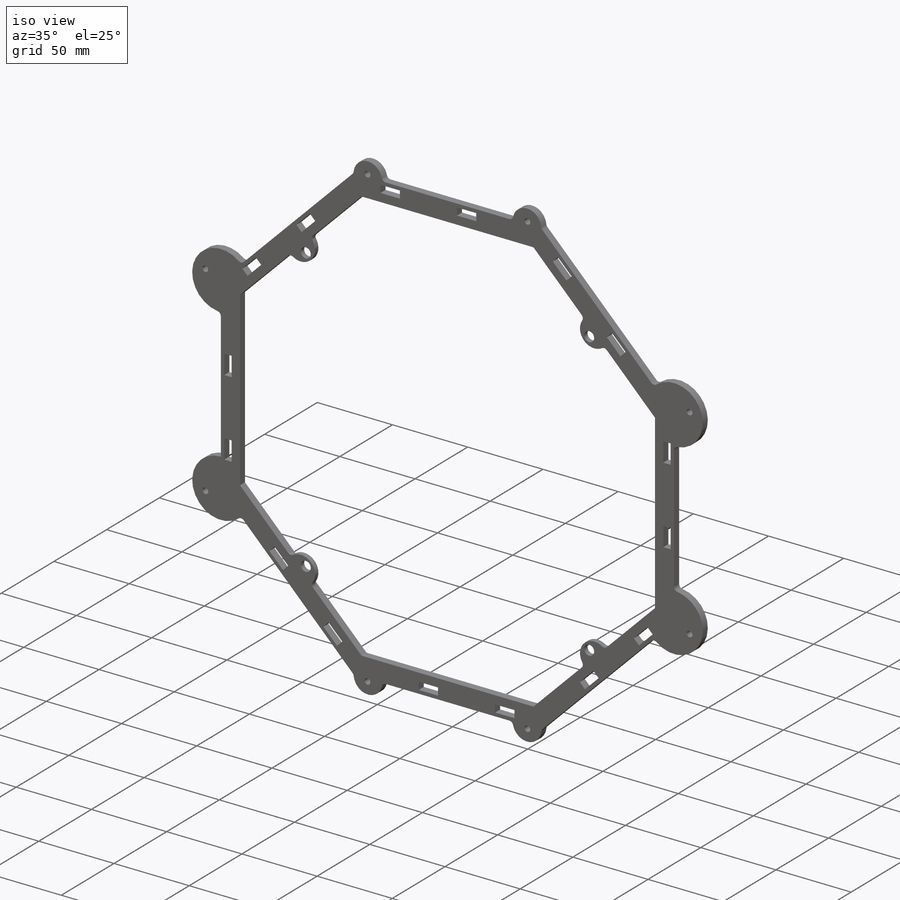
[diagram: iso view]
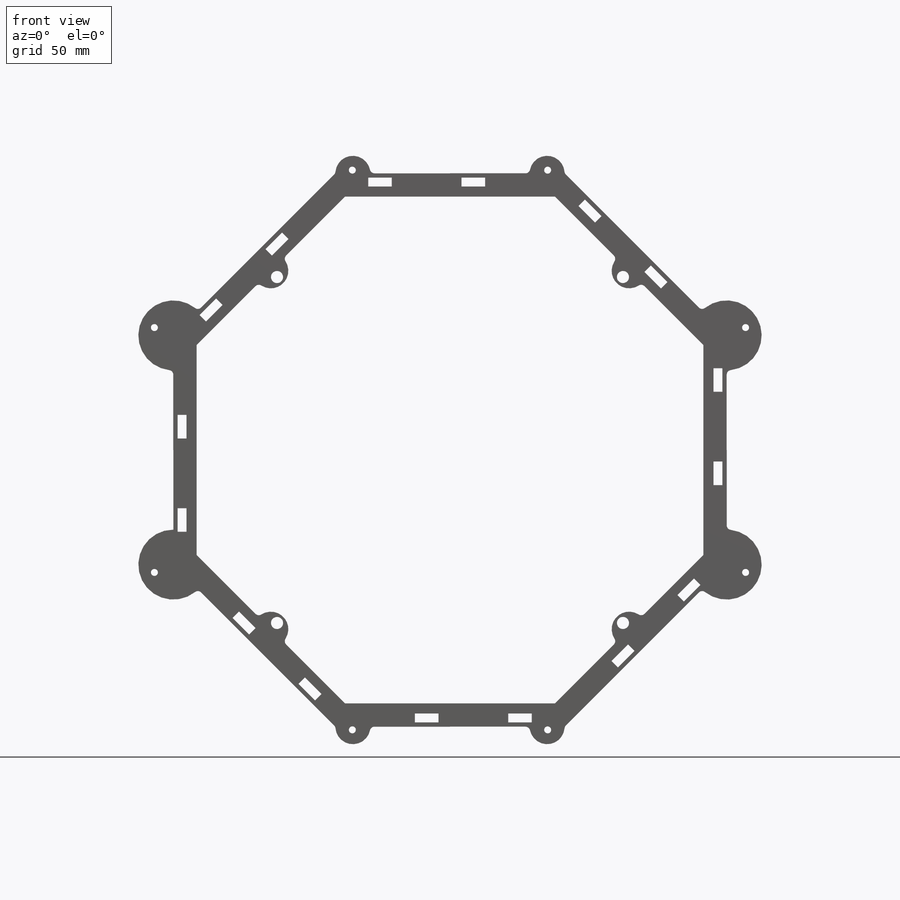
[diagram: front view]
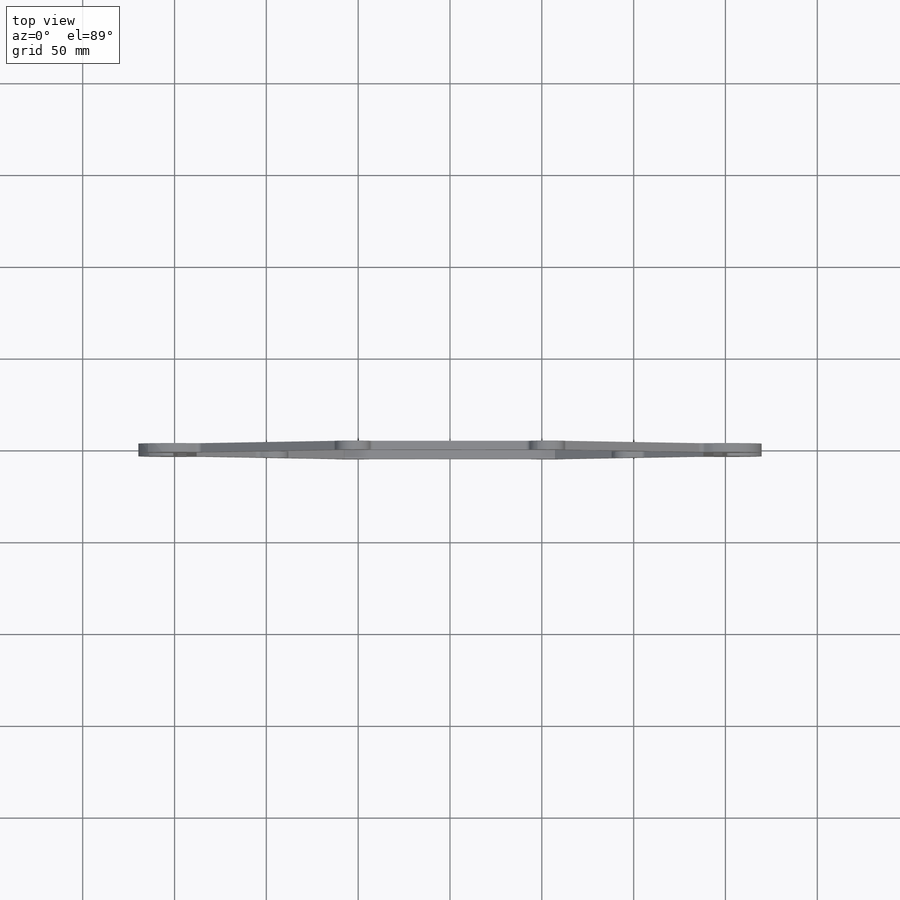
[diagram: top view]
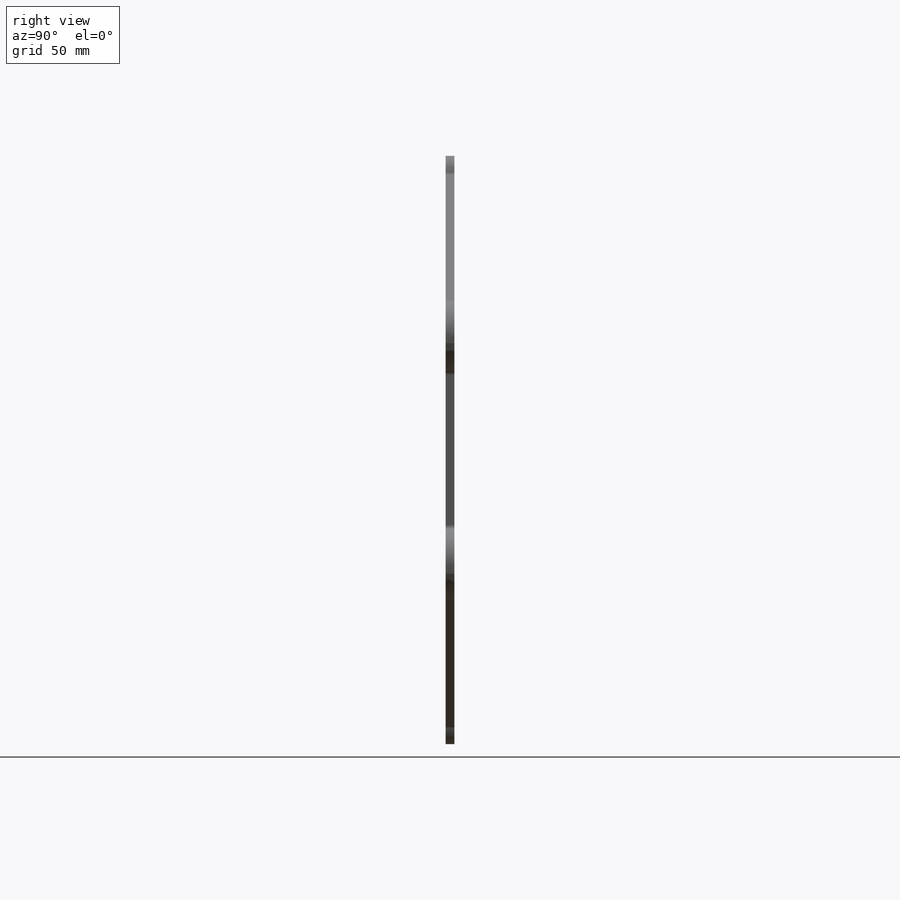
[diagram: right view]
SOLIDWORKS PART (.sldprt)
format: sldprt  version: not decoded by parser v0  size: 1,025,536 bytes
history: native  units: mm
features: sketch x7, extrude x3, material x1, cut_extrude x1, hole x1 (+11 scaffold rows collapsed)
feature tree (24):
  scaffold x11  (default folders/planes/origin — collapsed)
  material  "6061-T6 (SS)"
  sketch  "Sketch1"  dims[c1.D2=~284.012352mm c1.D1=114.3mm c2.D2=12.7mm]
  extrude  "Boss-Extrude1"  Depth=3.175mm
  sketch  "Sketch2"  dims[D1=9.525mm D2=6.604mm]
  extrude  "Boss-Extrude2"  Depth=3.175mm
  sketch  "Sketch3"  dims[c1.D1=4.7625mm c1.D2=12.7mm c1.D3=12.7mm c1.D4=12.7mm c1.D5=4.7625mm c1.D6=4.7625mm c1.D7=~15.340436mm c2.D1=4.7625mm c2.D2=12.7mm c2.D3=19.05mm c2.D4=4.7625mm c2.D5=12.7mm c2.D6=25.4mm c2.D7=4.7625mm c2.D8=25.4mm c2.D9=12.7mm c2.D10=4.7625mm c2.D11=12.7mm c2.D12=25.4mm c3.D4=50.8mm c3.D6=7.9375mm c3.D5=7.9375mm c3.D10=~13.862577mm c3.D8=8.0]
  cut_extrude  "Panel Slots"  [1 undecoded]
  sketch  "Sketch4"
  sketch  "Sketch5"  dims[D1=12.7mm D2=12.7mm D3=12.7mm]
  extrude  "Boss-Extrude3"  Depth=3.175mm
  hole  "#6 Clearance Hole1"  Diameter=3.7973mm Depth=25.4mm
  sketch  "Sketch7"  dims[c1.D1=6.35mm c1.D2=6.35mm c1.D3=6.35mm c1.D4=6.35mm c1.D5=6.35mm c1.D6=6.35mm c2.D1=266.7mm c2.D2=114.3mm]
  sketch  "Sketch6"  dims[hole-wizard template sketch: 50 standard entries collapsed; hole parameters above]
decode coverage: 10 of 12 modeling features carry decoded parameters
note: ~ marks probable driven/reference dimensions
note: 1 parameter value undecoded
note: suppression state not decoded; provenance and decode notes live in map.json
